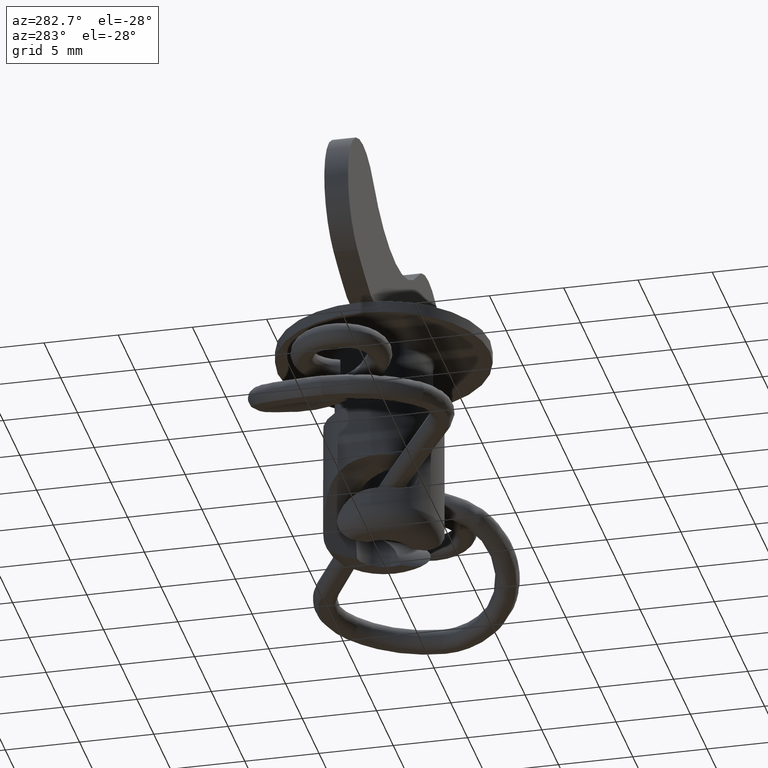
[diagram: clean part render]
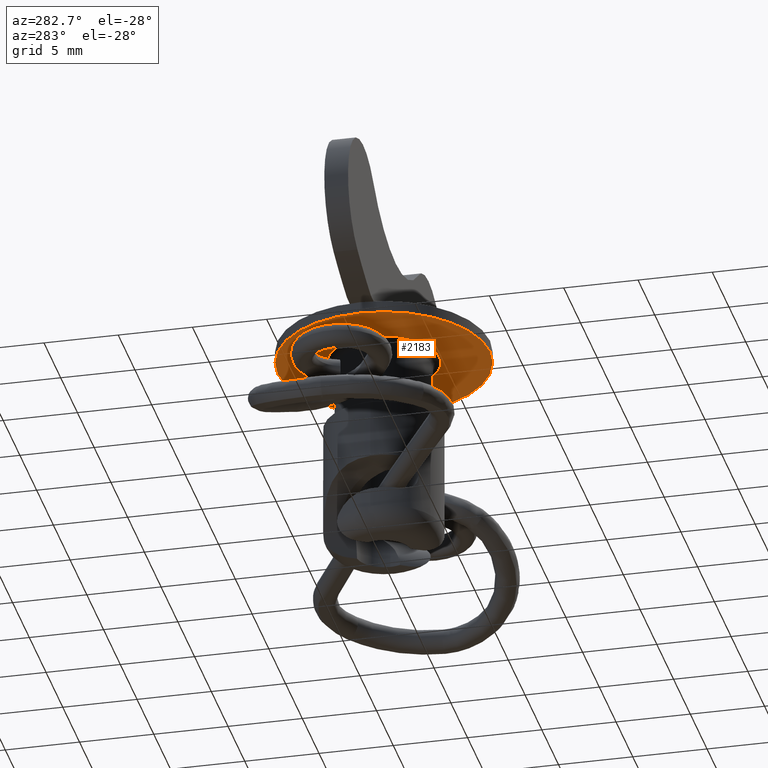
[diagram: same view with one face highlighted and labeled with its STEP entity id]
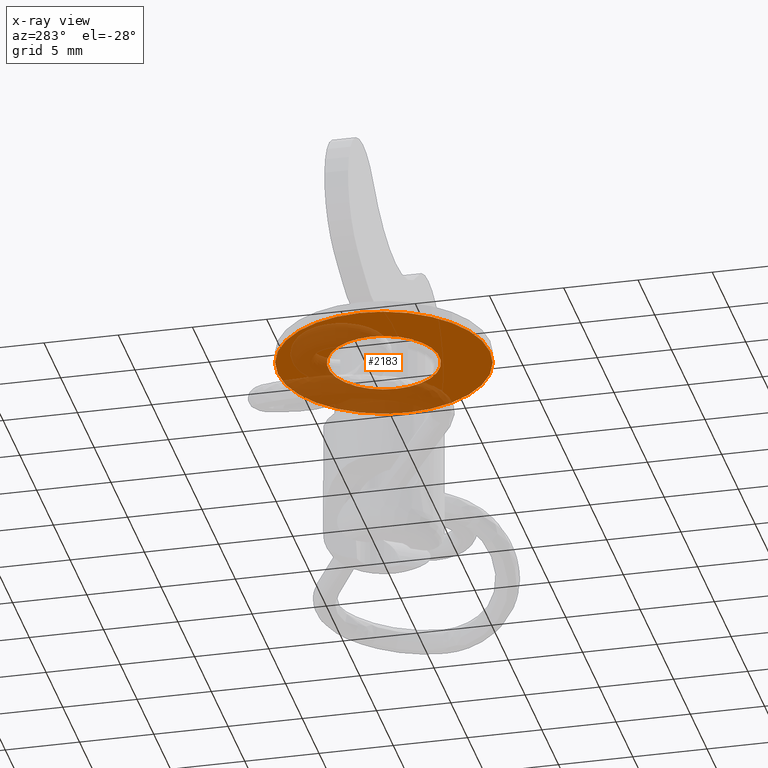
[diagram: x-ray of the same camera — body ghosted, the highlighted face saturated]
A machine part, auxiliary view. The second image highlights one B-rep face of the part: STEP entity #2183.
The next image is the same camera in x-ray: the body ghosted, the highlighted face saturated — about 49% of this face is hidden behind the body in this view.
In plain terms, the highlighted planar face has unit normal (0, 0, 1).
Its self-contained STEP definition (entity closure, byte-faithful):
#271 = EDGE_CURVE ( 'NONE', #5094, #5747, #4540, .T. ) ;
#281 = DIRECTION ( 'NONE',  ( 0.0000000000000000000, 0.0000000000000000000, 1.000000000000000000 ) ) ;
#306 = EDGE_CURVE ( 'NONE', #3150, #7125, #4318, .T. ) ;
#666 = EDGE_LOOP ( 'NONE', ( #6898, #2602 ) ) ;
#702 = DIRECTION ( 'NONE',  ( 1.000000000000000000, 0.0000000000000000000, 0.0000000000000000000 ) ) ;
#1218 = DIRECTION ( 'NONE',  ( 0.0000000000000000000, 0.0000000000000000000, 1.000000000000000000 ) ) ;
#1491 = CARTESIAN_POINT ( 'NONE',  ( 3.750000000000044900, 0.0000000000000000000, 10.14406900000000200 ) ) ;
#1607 = CARTESIAN_POINT ( 'NONE',  ( 0.0000000000000000000, 0.0000000000000000000, 10.14406900000000200 ) ) ;
#1702 = CARTESIAN_POINT ( 'NONE',  ( 0.0000000000000000000, 0.0000000000000000000, 10.14406900000000200 ) ) ;
#1870 = CIRCLE ( 'NONE', #3682, 7.150000000000000400 ) ;
#2073 = CARTESIAN_POINT ( 'NONE',  ( -3.750000000000044900, 4.592425496802630200E-016, 10.14406900000000200 ) ) ;
#2183 = ADVANCED_FACE ( 'NONE', ( #8370, #4420 ), #8264, .F. ) ;
#2412 = DIRECTION ( 'NONE',  ( 1.000000000000000000, 0.0000000000000000000, 0.0000000000000000000 ) ) ;
#2445 = DIRECTION ( 'NONE',  ( 1.000000000000000000, 0.0000000000000000000, 0.0000000000000000000 ) ) ;
#2461 = AXIS2_PLACEMENT_3D ( 'NONE', #5449, #1218, #6154 ) ;
#2602 = ORIENTED_EDGE ( 'NONE', *, *, #306, .F. ) ;
#2656 = EDGE_CURVE ( 'NONE', #7125, #3150, #5603, .T. ) ;
#3150 = VERTEX_POINT ( 'NONE', #2073 ) ;
#3682 = AXIS2_PLACEMENT_3D ( 'NONE', #1607, #6538, #2445 ) ;
#4094 = DIRECTION ( 'NONE',  ( -0.0000000000000000000, -0.0000000000000000000, -1.000000000000000000 ) ) ;
#4318 = CIRCLE ( 'NONE', #5184, 3.750000000000044900 ) ;
#4420 = FACE_OUTER_BOUND ( 'NONE', #4788, .T. ) ;
#4540 = CIRCLE ( 'NONE', #5632, 7.150000000000000400 ) ;
#4566 = CARTESIAN_POINT ( 'NONE',  ( 7.150000000000000400, 8.756224613903575500E-016, 10.14406900000000200 ) ) ;
#4685 = ORIENTED_EDGE ( 'NONE', *, *, #271, .F. ) ;
#4788 = EDGE_LOOP ( 'NONE', ( #4844, #4685 ) ) ;
#4808 = CARTESIAN_POINT ( 'NONE',  ( -7.150000000000000400, 0.0000000000000000000, 10.14406900000000200 ) ) ;
#4844 = ORIENTED_EDGE ( 'NONE', *, *, #5025, .F. ) ;
#4927 = DIRECTION ( 'NONE',  ( -0.0000000000000000000, -0.0000000000000000000, -1.000000000000000000 ) ) ;
#5025 = EDGE_CURVE ( 'NONE', #5747, #5094, #1870, .T. ) ;
#5094 = VERTEX_POINT ( 'NONE', #4566 ) ;
#5184 = AXIS2_PLACEMENT_3D ( 'NONE', #8316, #4094, #9022 ) ;
#5449 = CARTESIAN_POINT ( 'NONE',  ( 0.0000000000000000000, 0.0000000000000000000, 10.14406900000000200 ) ) ;
#5603 = CIRCLE ( 'NONE', #7186, 3.750000000000044900 ) ;
#5632 = AXIS2_PLACEMENT_3D ( 'NONE', #1702, #281, #2412 ) ;
#5747 = VERTEX_POINT ( 'NONE', #4808 ) ;
#6154 = DIRECTION ( 'NONE',  ( 1.000000000000000000, 0.0000000000000000000, -0.0000000000000000000 ) ) ;
#6538 = DIRECTION ( 'NONE',  ( 0.0000000000000000000, 0.0000000000000000000, 1.000000000000000000 ) ) ;
#6898 = ORIENTED_EDGE ( 'NONE', *, *, #2656, .F. ) ;
#7125 = VERTEX_POINT ( 'NONE', #1491 ) ;
#7186 = AXIS2_PLACEMENT_3D ( 'NONE', #9152, #4927, #702 ) ;
#8264 = PLANE ( 'NONE',  #2461 ) ;
#8316 = CARTESIAN_POINT ( 'NONE',  ( 0.0000000000000000000, 0.0000000000000000000, 10.14406900000000200 ) ) ;
#8370 = FACE_BOUND ( 'NONE', #666, .T. ) ;
#9022 = DIRECTION ( 'NONE',  ( 1.000000000000000000, 0.0000000000000000000, 0.0000000000000000000 ) ) ;
#9152 = CARTESIAN_POINT ( 'NONE',  ( 0.0000000000000000000, 0.0000000000000000000, 10.14406900000000200 ) ) ;